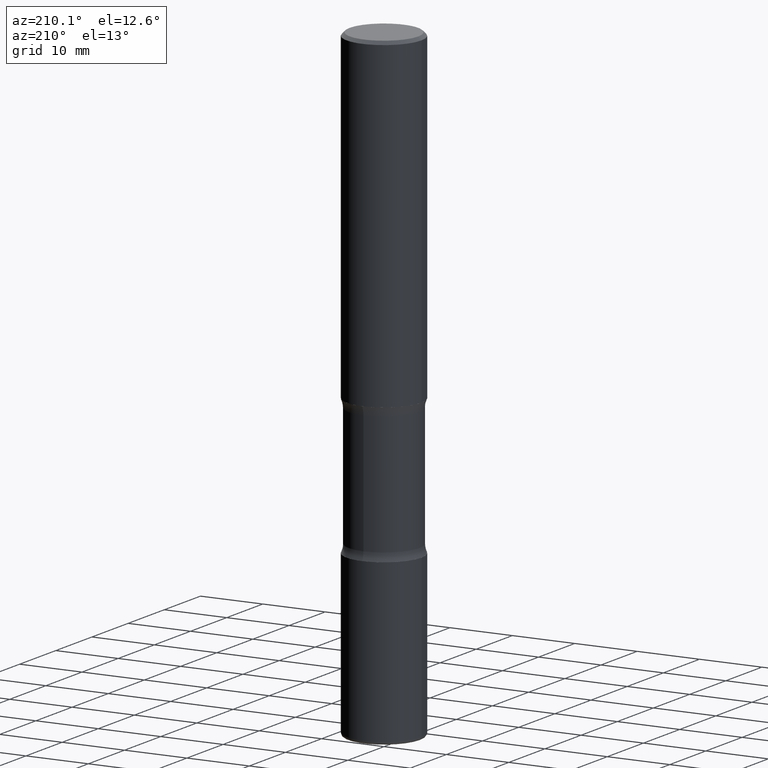
[diagram: clean part render]
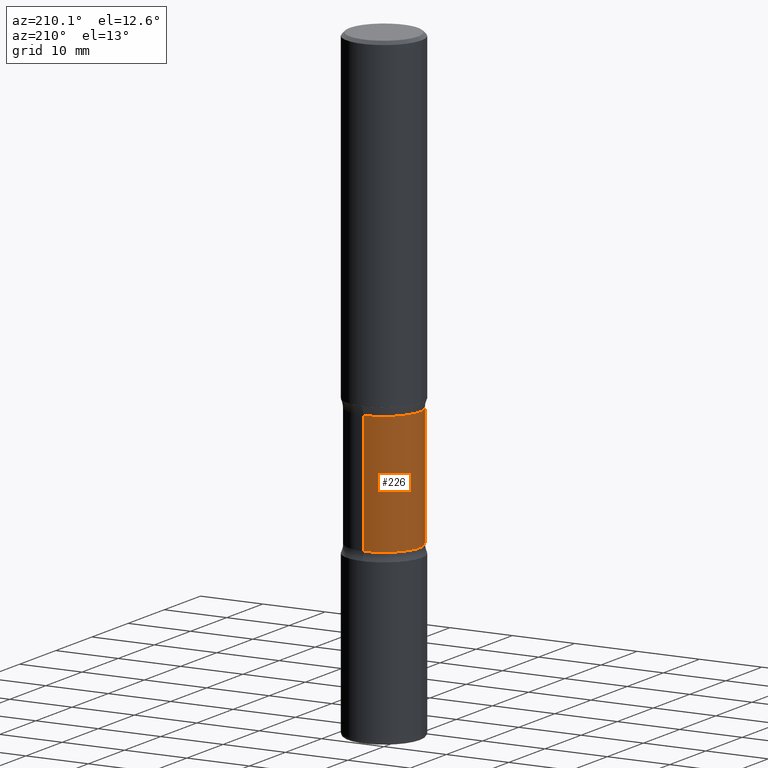
[diagram: same view with one face highlighted and labeled with its STEP entity id]
A machine part, auxiliary view. The second image highlights one B-rep face of the part: STEP entity #226.
In plain terms, the highlighted cylindrical surface (partial cylindrical patch) has radius 5.6998 mm, axis along (0, -0, -1).
Its self-contained STEP definition (entity closure, byte-faithful):
#22 = ORIENTED_EDGE ( 'NONE', *, *, #134, .T. ) ;
#41 = LINE ( 'NONE', #208, #346 ) ;
#48 = CARTESIAN_POINT ( 'NONE',  ( 1.566976824872894642E-15, 0.2243999999999863049, -3.937000000000000721 ) ) ;
#57 = DIRECTION ( 'NONE',  ( 2.525985086076564115E-29, -3.376177443336566513E-15, -1.000000000000000000 ) ) ;
#95 = DIRECTION ( 'NONE',  ( 2.525985086076564115E-29, -3.376177443336566513E-15, -1.000000000000000000 ) ) ;
#129 = CARTESIAN_POINT ( 'NONE',  ( -1.579972688886734072E-15, -0.2244000000000073713, -2.100216601173594544 ) ) ;
#134 = EDGE_CURVE ( 'NONE', #385, #268, #388, .T. ) ;
#159 = DIRECTION ( 'NONE',  ( 6.982962677686265922E-15, 1.000000000000000000, -2.434802133390609421E-15 ) ) ;
#177 = CARTESIAN_POINT ( 'NONE',  ( 9.710227154047748282E-29, -1.362793696358492956E-14, -3.937000000000000277 ) ) ;
#190 = AXIS2_PLACEMENT_3D ( 'NONE', #177, #351, #343 ) ;
#204 = CARTESIAN_POINT ( 'NONE',  ( 1.566976824872848494E-15, 0.2243999999999925499, -2.100216601173596320 ) ) ;
#208 = CARTESIAN_POINT ( 'NONE',  ( -1.539495750699834052E-15, -0.2244000000000135608, -3.936999999999999389 ) ) ;
#213 = VERTEX_POINT ( 'NONE', #441 ) ;
#219 = DIRECTION ( 'NONE',  ( 2.525985086076564115E-29, -3.376177443336566513E-15, -1.000000000000000000 ) ) ;
#226 = ADVANCED_FACE ( 'NONE', ( #393 ), #307, .T. ) ;
#249 = DIRECTION ( 'NONE',  ( 2.525985086076564115E-29, -3.376177443336566513E-15, -1.000000000000000000 ) ) ;
#253 = ORIENTED_EDGE ( 'NONE', *, *, #432, .F. ) ;
#268 = VERTEX_POINT ( 'NONE', #204 ) ;
#307 = CYLINDRICAL_SURFACE ( 'NONE', #190, 0.2243999999999999329 ) ;
#315 = EDGE_LOOP ( 'NONE', ( #458, #22, #368, #253 ) ) ;
#343 = DIRECTION ( 'NONE',  ( 6.982962677686265922E-15, 1.000000000000000000, -2.434802133390609815E-15 ) ) ;
#346 = VECTOR ( 'NONE', #95, 39.37007874015748143 ) ;
#351 = DIRECTION ( 'NONE',  ( 2.525985086076564115E-29, -3.376177443336566513E-15, -1.000000000000000000 ) ) ;
#362 = EDGE_CURVE ( 'NONE', #385, #465, #41, .T. ) ;
#368 = ORIENTED_EDGE ( 'NONE', *, *, #554, .T. ) ;
#377 = VECTOR ( 'NONE', #249, 39.37007874015748143 ) ;
#385 = VERTEX_POINT ( 'NONE', #129 ) ;
#388 = CIRCLE ( 'NONE', #549, 0.2243999999999999606 ) ;
#393 = FACE_OUTER_BOUND ( 'NONE', #315, .T. ) ;
#405 = DIRECTION ( 'NONE',  ( 6.982962677686265922E-15, 1.000000000000000000, -3.652203200085913934E-15 ) ) ;
#424 = CARTESIAN_POINT ( 'NONE',  ( -1.579972688886713168E-15, -0.2244000000000099804, -2.860383398826404466 ) ) ;
#432 = EDGE_CURVE ( 'NONE', #465, #213, #453, .T. ) ;
#441 = CARTESIAN_POINT ( 'NONE',  ( 1.566976824872867821E-15, 0.2243999999999899686, -2.860383398826405799 ) ) ;
#452 = CARTESIAN_POINT ( 'NONE',  ( 5.070539682259229331E-29, -7.426630284172150130E-15, -2.100216601173595432 ) ) ;
#453 = CIRCLE ( 'NONE', #516, 0.2243999999999999606 ) ;
#456 = CARTESIAN_POINT ( 'NONE',  ( 6.990709676060807691E-29, -9.993088279580958225E-15, -2.860383398826405354 ) ) ;
#458 = ORIENTED_EDGE ( 'NONE', *, *, #362, .F. ) ;
#465 = VERTEX_POINT ( 'NONE', #424 ) ;
#468 = LINE ( 'NONE', #48, #377 ) ;
#516 = AXIS2_PLACEMENT_3D ( 'NONE', #456, #219, #159 ) ;
#549 = AXIS2_PLACEMENT_3D ( 'NONE', #452, #57, #405 ) ;
#554 = EDGE_CURVE ( 'NONE', #268, #213, #468, .T. ) ;